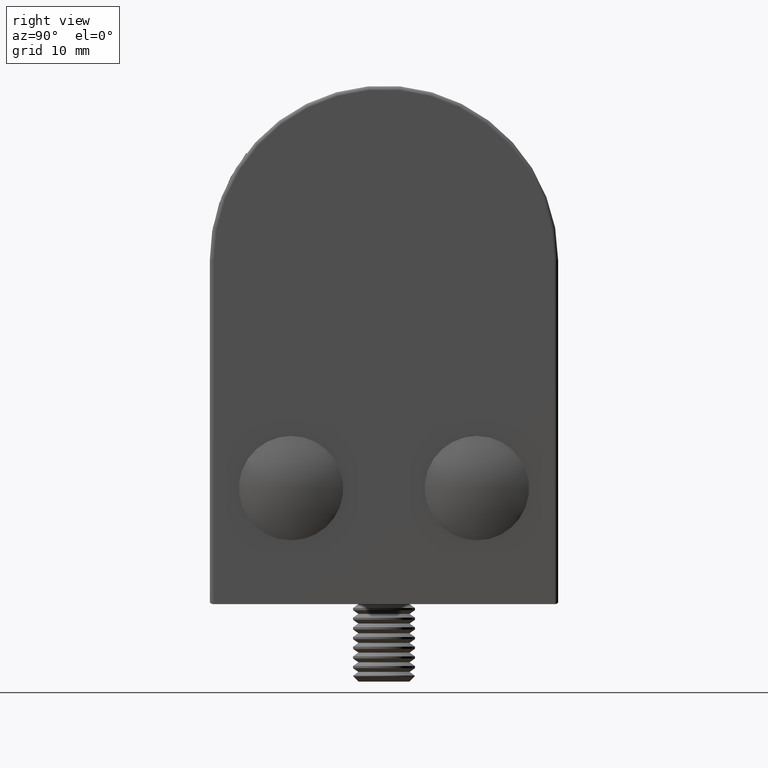
[diagram: clean part render]
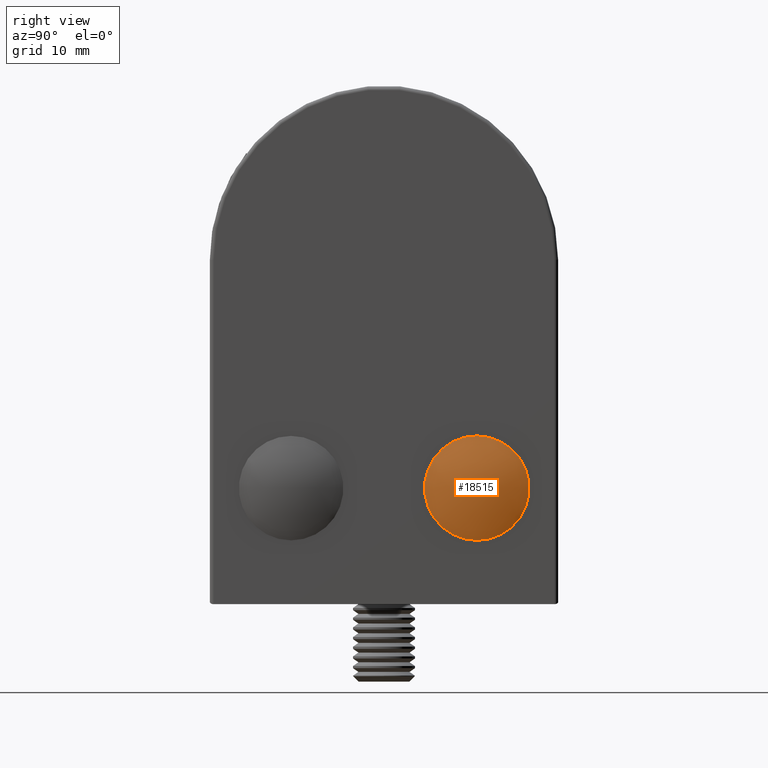
[diagram: same view with one face highlighted and labeled with its STEP entity id]
A machine part, right view. The second image highlights one B-rep face of the part: STEP entity #18515.
In plain terms, the highlighted spherical surface has radius 15.9375 mm.
Its self-contained STEP definition (entity closure, byte-faithful):
#4976 = ORIENTED_EDGE ( 'NONE', *, *, #34150, .F. ) ;
#7832 = AXIS2_PLACEMENT_3D ( 'NONE', #70116, #75378, #44071 ) ;
#13456 = VERTEX_POINT ( 'NONE', #60322 ) ;
#16089 = FACE_OUTER_BOUND ( 'NONE', #61282, .T. ) ;
#18515 = ADVANCED_FACE ( 'NONE', ( #16089 ), #48955, .T. ) ;
#34150 = EDGE_CURVE ( 'NONE', #13456, #13456, #43218, .T. ) ;
#43218 = CIRCLE ( 'NONE', #43590, 6.750000000000052403 ) ;
#43590 = AXIS2_PLACEMENT_3D ( 'NONE', #45808, #45568, #45284 ) ;
#44071 = DIRECTION ( 'NONE',  ( 1.000000000000000000, 0.000000000000000000, 0.000000000000000000 ) ) ;
#45284 = DIRECTION ( 'NONE',  ( 0.000000000000000000, 0.000000000000000000, -1.000000000000000000 ) ) ;
#45568 = DIRECTION ( 'NONE',  ( 0.000000000000000000, -1.000000000000000000, 0.000000000000000000 ) ) ;
#45808 = CARTESIAN_POINT ( 'NONE',  ( 0.000000000000000000, 3.469446951953614189E-15, 0.000000000000000000 ) ) ;
#48955 = SPHERICAL_SURFACE ( 'NONE', #7832, 15.93750000000002132 ) ;
#60322 = CARTESIAN_POINT ( 'NONE',  ( 0.000000000000000000, 3.469446951953614189E-15, -6.750000000000052403 ) ) ;
#61282 = EDGE_LOOP ( 'NONE', ( #4976 ) ) ;
#70116 = CARTESIAN_POINT ( 'NONE',  ( 0.000000000000000000, -14.43750000000001954, 0.000000000000000000 ) ) ;
#75378 = DIRECTION ( 'NONE',  ( -0.000000000000000000, 0.000000000000000000, 1.000000000000000000 ) ) ;